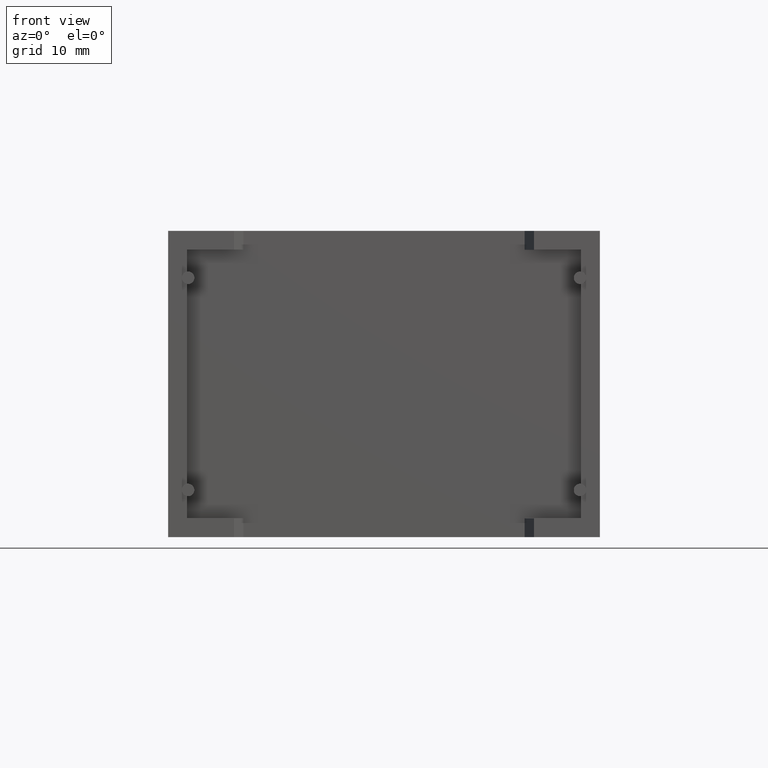
[diagram: clean part render]
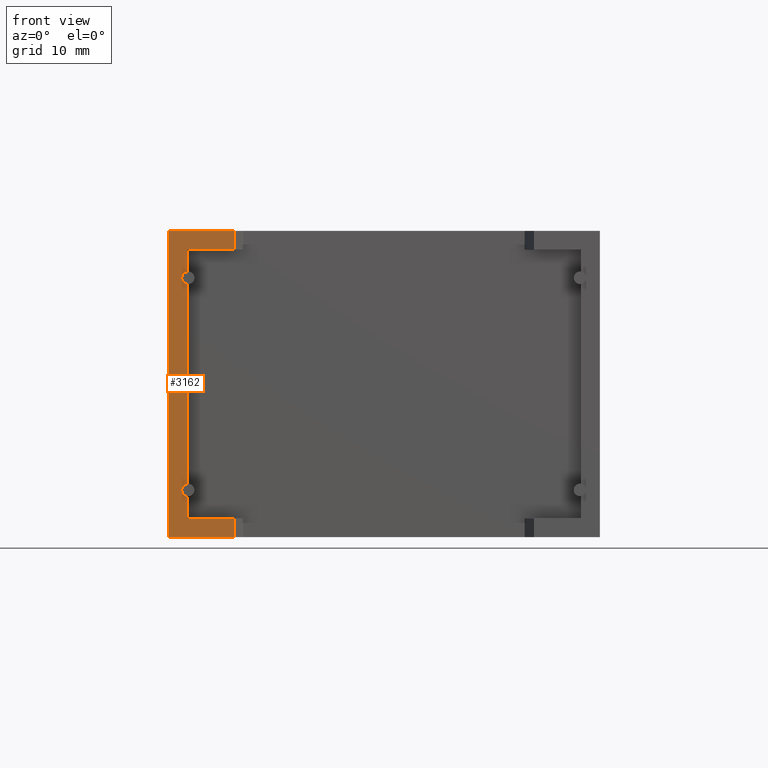
[diagram: same view with one face highlighted and labeled with its STEP entity id]
A machine part, front view. The second image highlights one B-rep face of the part: STEP entity #3162.
In plain terms, the highlighted planar face has unit normal (0, 1, 0).
Its self-contained STEP definition (entity closure, byte-faithful):
#60 = DIRECTION ( 'NONE',  ( 0.0000000000000000000, 1.000000000000000000, 0.0000000000000000000 ) ) ;
#69 = VECTOR ( 'NONE', #1826, 1000.000000000000000 ) ;
#92 = DIRECTION ( 'NONE',  ( -0.0000000000000000000, -0.0000000000000000000, 1.000000000000000000 ) ) ;
#154 = LINE ( 'NONE', #2127, #2659 ) ;
#163 = AXIS2_PLACEMENT_3D ( 'NONE', #2943, #60, #842 ) ;
#213 = CARTESIAN_POINT ( 'NONE',  ( 1.801070999999999900, 0.0000000000000000000, 3.908211986468963900 ) ) ;
#214 = FACE_OUTER_BOUND ( 'NONE', #2878, .T. ) ;
#218 = ORIENTED_EDGE ( 'NONE', *, *, #2626, .F. ) ;
#282 = DIRECTION ( 'NONE',  ( -1.000000000000000000, 0.0000000000000000000, 0.0000000000000000000 ) ) ;
#321 = DIRECTION ( 'NONE',  ( 0.0000000000000000000, 0.0000000000000000000, -1.000000000000000000 ) ) ;
#345 = CARTESIAN_POINT ( 'NONE',  ( 1.801070999999999900, 0.0000000000000000000, 1.801070999999999900 ) ) ;
#373 = DIRECTION ( 'NONE',  ( 7.228014483236697500E-016, 0.0000000000000000000, 1.000000000000000000 ) ) ;
#389 = VECTOR ( 'NONE', #2980, 1000.000000000000000 ) ;
#399 = LINE ( 'NONE', #850, #2413 ) ;
#515 = VERTEX_POINT ( 'NONE', #589 ) ;
#526 = VERTEX_POINT ( 'NONE', #1933 ) ;
#530 = CARTESIAN_POINT ( 'NONE',  ( 1.801070999999999900, 0.0000000000000000000, 1.801070999999999900 ) ) ;
#589 = CARTESIAN_POINT ( 'NONE',  ( 6.299999999999998900, 1.543054966925664900E-015, 0.0000000000000000000 ) ) ;
#656 = DIRECTION ( 'NONE',  ( 0.0000000000000000000, 0.0000000000000000000, 1.000000000000000000 ) ) ;
#665 = EDGE_CURVE ( 'NONE', #3195, #1124, #1533, .T. ) ;
#667 = CARTESIAN_POINT ( 'NONE',  ( 1.899999999999999000, 0.0000000000000000000, 4.499999999999993800 ) ) ;
#706 = ORIENTED_EDGE ( 'NONE', *, *, #3257, .F. ) ;
#806 = ORIENTED_EDGE ( 'NONE', *, *, #1468, .T. ) ;
#827 = CARTESIAN_POINT ( 'NONE',  ( 0.0000000000000000000, 0.0000000000000000000, 29.30000000000000100 ) ) ;
#842 = DIRECTION ( 'NONE',  ( 0.0000000000000000000, -0.0000000000000000000, 1.000000000000000000 ) ) ;
#850 = CARTESIAN_POINT ( 'NONE',  ( 1.801070999999999900, 0.0000000000000000000, 27.49892899999999700 ) ) ;
#863 = EDGE_CURVE ( 'NONE', #2951, #526, #2604, .T. ) ;
#922 = EDGE_CURVE ( 'NONE', #515, #3441, #154, .T. ) ;
#927 = CARTESIAN_POINT ( 'NONE',  ( 0.0000000000000000000, 0.0000000000000000000, 29.30000000000000100 ) ) ;
#934 = LINE ( 'NONE', #345, #1031 ) ;
#963 = EDGE_CURVE ( 'NONE', #2253, #2710, #2913, .T. ) ;
#1023 = EDGE_CURVE ( 'NONE', #526, #2253, #399, .T. ) ;
#1031 = VECTOR ( 'NONE', #1678, 1000.000000000000000 ) ;
#1084 = EDGE_CURVE ( 'NONE', #3385, #3230, #2817, .T. ) ;
#1113 = CARTESIAN_POINT ( 'NONE',  ( 1.801070999999999900, 0.0000000000000000000, 27.49892899999999700 ) ) ;
#1124 = VERTEX_POINT ( 'NONE', #1213 ) ;
#1163 = ORIENTED_EDGE ( 'NONE', *, *, #1023, .F. ) ;
#1164 = ORIENTED_EDGE ( 'NONE', *, *, #2213, .T. ) ;
#1179 = DIRECTION ( 'NONE',  ( 0.0000000000000000000, 1.000000000000000000, 0.0000000000000000000 ) ) ;
#1213 = CARTESIAN_POINT ( 'NONE',  ( 6.299999999999998900, 1.543054966925664900E-015, 29.30000000000000100 ) ) ;
#1237 = CARTESIAN_POINT ( 'NONE',  ( 0.0000000000000000000, 0.0000000000000000000, 29.30000000000000100 ) ) ;
#1284 = VECTOR ( 'NONE', #3307, 1000.000000000000000 ) ;
#1336 = EDGE_CURVE ( 'NONE', #1783, #515, #2372, .T. ) ;
#1339 = ORIENTED_EDGE ( 'NONE', *, *, #922, .T. ) ;
#1369 = DIRECTION ( 'NONE',  ( -0.0000000000000000000, -0.0000000000000000000, 1.000000000000000000 ) ) ;
#1383 = CARTESIAN_POINT ( 'NONE',  ( 1.801070999999999900, 0.0000000000000000000, 24.20821198646897800 ) ) ;
#1386 = CARTESIAN_POINT ( 'NONE',  ( 1.899999999999999000, 0.0000000000000000000, 24.80000000000000800 ) ) ;
#1428 = EDGE_CURVE ( 'NONE', #3385, #3089, #1654, .T. ) ;
#1468 = EDGE_CURVE ( 'NONE', #2951, #1124, #3334, .T. ) ;
#1524 = CARTESIAN_POINT ( 'NONE',  ( 6.299999999999998900, 1.543054966925664900E-015, 1.801070999999999900 ) ) ;
#1533 = LINE ( 'NONE', #927, #1284 ) ;
#1564 = VECTOR ( 'NONE', #321, 1000.000000000000000 ) ;
#1581 = CARTESIAN_POINT ( 'NONE',  ( 0.0000000000000000000, 0.0000000000000000000, 0.0000000000000000000 ) ) ;
#1613 = LINE ( 'NONE', #1237, #1942 ) ;
#1654 = LINE ( 'NONE', #3249, #389 ) ;
#1678 = DIRECTION ( 'NONE',  ( 1.000000000000000000, 0.0000000000000000000, 0.0000000000000000000 ) ) ;
#1781 = CARTESIAN_POINT ( 'NONE',  ( 6.299999999999998900, 1.543054966925664900E-015, 27.49892899999999700 ) ) ;
#1783 = VERTEX_POINT ( 'NONE', #2305 ) ;
#1826 = DIRECTION ( 'NONE',  ( 1.000000000000000000, 0.0000000000000000000, 0.0000000000000000000 ) ) ;
#1930 = DIRECTION ( 'NONE',  ( -0.0000000000000000000, -1.000000000000000000, -0.0000000000000000000 ) ) ;
#1933 = CARTESIAN_POINT ( 'NONE',  ( 1.801070999999999900, 0.0000000000000000000, 27.49892899999999700 ) ) ;
#1942 = VECTOR ( 'NONE', #3398, 1000.000000000000000 ) ;
#2127 = CARTESIAN_POINT ( 'NONE',  ( 6.299999999999998900, 1.543054966925664900E-015, 0.0000000000000000000 ) ) ;
#2213 = EDGE_CURVE ( 'NONE', #3195, #1783, #1613, .T. ) ;
#2230 = VECTOR ( 'NONE', #282, 1000.000000000000000 ) ;
#2253 = VERTEX_POINT ( 'NONE', #2289 ) ;
#2263 = LINE ( 'NONE', #1113, #1564 ) ;
#2289 = CARTESIAN_POINT ( 'NONE',  ( 1.801070999999999900, 0.0000000000000000000, 25.39178801353103400 ) ) ;
#2305 = CARTESIAN_POINT ( 'NONE',  ( 0.0000000000000000000, 0.0000000000000000000, 0.0000000000000000000 ) ) ;
#2372 = LINE ( 'NONE', #1581, #69 ) ;
#2411 = ORIENTED_EDGE ( 'NONE', *, *, #1428, .F. ) ;
#2413 = VECTOR ( 'NONE', #2705, 1000.000000000000000 ) ;
#2438 = CARTESIAN_POINT ( 'NONE',  ( 6.299999999999998900, 1.543054966925664900E-015, 0.0000000000000000000 ) ) ;
#2473 = ORIENTED_EDGE ( 'NONE', *, *, #1336, .T. ) ;
#2506 = AXIS2_PLACEMENT_3D ( 'NONE', #1386, #1930, #373 ) ;
#2604 = LINE ( 'NONE', #3428, #2230 ) ;
#2611 = VECTOR ( 'NONE', #1369, 1000.000000000000000 ) ;
#2626 = EDGE_CURVE ( 'NONE', #3089, #3441, #934, .T. ) ;
#2659 = VECTOR ( 'NONE', #92, 1000.000000000000000 ) ;
#2660 = ORIENTED_EDGE ( 'NONE', *, *, #863, .F. ) ;
#2671 = ORIENTED_EDGE ( 'NONE', *, *, #1084, .T. ) ;
#2674 = PLANE ( 'NONE',  #163 ) ;
#2681 = AXIS2_PLACEMENT_3D ( 'NONE', #667, #1179, #656 ) ;
#2705 = DIRECTION ( 'NONE',  ( 0.0000000000000000000, 0.0000000000000000000, -1.000000000000000000 ) ) ;
#2710 = VERTEX_POINT ( 'NONE', #1383 ) ;
#2817 = CIRCLE ( 'NONE', #2681, 0.5999999999999998700 ) ;
#2878 = EDGE_LOOP ( 'NONE', ( #2411, #2671, #706, #2930, #1163, #2660, #806, #3216, #1164, #2473, #1339, #218 ) ) ;
#2913 = CIRCLE ( 'NONE', #2506, 0.5999999999999998700 ) ;
#2930 = ORIENTED_EDGE ( 'NONE', *, *, #963, .F. ) ;
#2943 = CARTESIAN_POINT ( 'NONE',  ( 0.0000000000000000000, 0.0000000000000000000, 29.30000000000000100 ) ) ;
#2951 = VERTEX_POINT ( 'NONE', #1781 ) ;
#2955 = CARTESIAN_POINT ( 'NONE',  ( 1.801070999999999900, 0.0000000000000000000, 5.091788013531023600 ) ) ;
#2980 = DIRECTION ( 'NONE',  ( 0.0000000000000000000, 0.0000000000000000000, -1.000000000000000000 ) ) ;
#3089 = VERTEX_POINT ( 'NONE', #530 ) ;
#3162 = ADVANCED_FACE ( 'NONE', ( #214 ), #2674, .F. ) ;
#3195 = VERTEX_POINT ( 'NONE', #827 ) ;
#3216 = ORIENTED_EDGE ( 'NONE', *, *, #665, .F. ) ;
#3230 = VERTEX_POINT ( 'NONE', #2955 ) ;
#3249 = CARTESIAN_POINT ( 'NONE',  ( 1.801070999999999900, 0.0000000000000000000, 27.49892899999999700 ) ) ;
#3257 = EDGE_CURVE ( 'NONE', #2710, #3230, #2263, .T. ) ;
#3307 = DIRECTION ( 'NONE',  ( 1.000000000000000000, 0.0000000000000000000, 0.0000000000000000000 ) ) ;
#3334 = LINE ( 'NONE', #2438, #2611 ) ;
#3385 = VERTEX_POINT ( 'NONE', #213 ) ;
#3398 = DIRECTION ( 'NONE',  ( -0.0000000000000000000, -0.0000000000000000000, -1.000000000000000000 ) ) ;
#3428 = CARTESIAN_POINT ( 'NONE',  ( 39.49892899999999700, 0.0000000000000000000, 27.49892899999999700 ) ) ;
#3441 = VERTEX_POINT ( 'NONE', #1524 ) ;